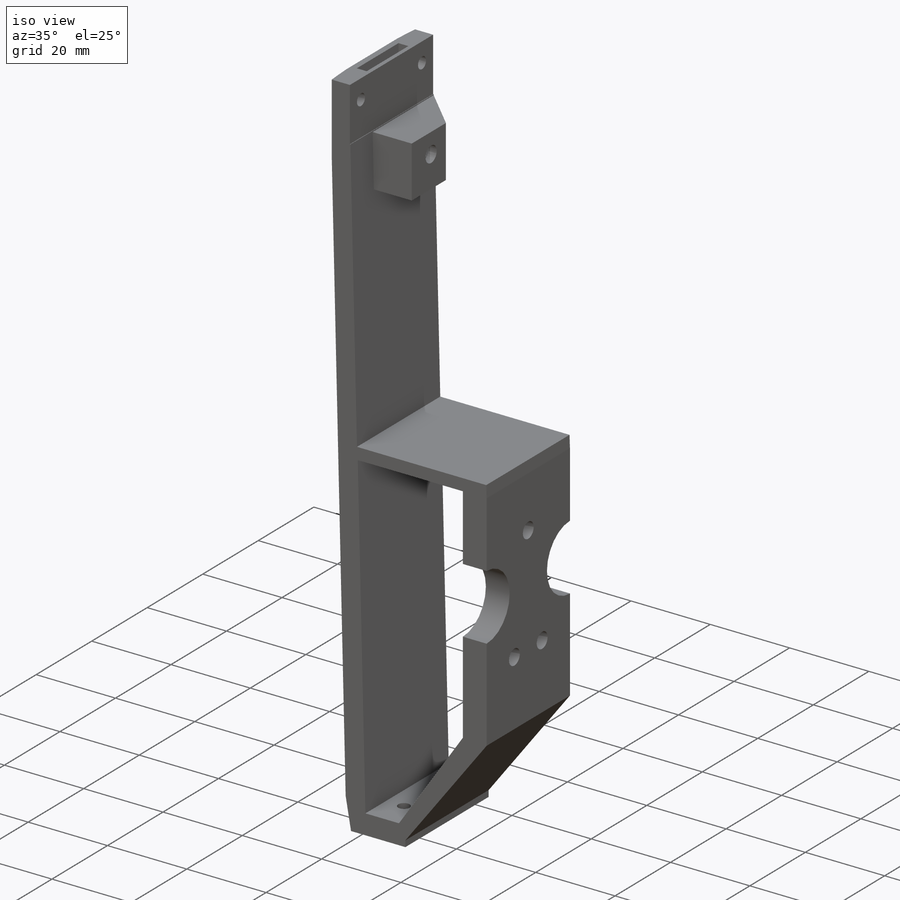
[diagram: iso view]
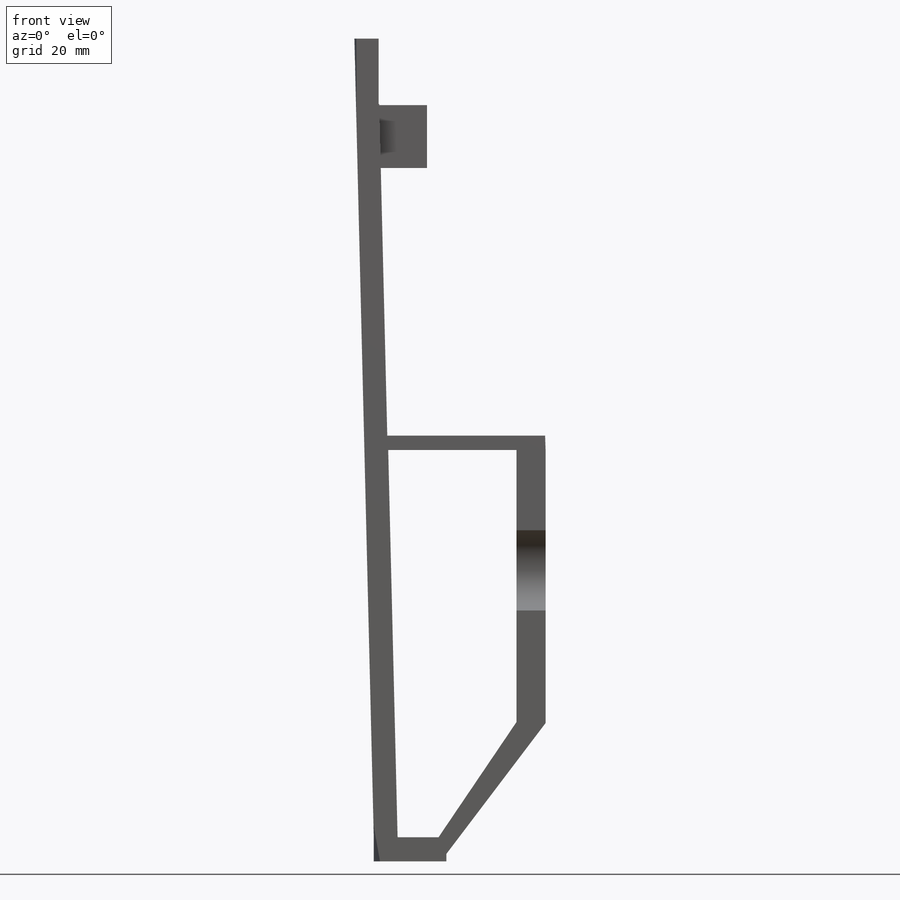
[diagram: front view]
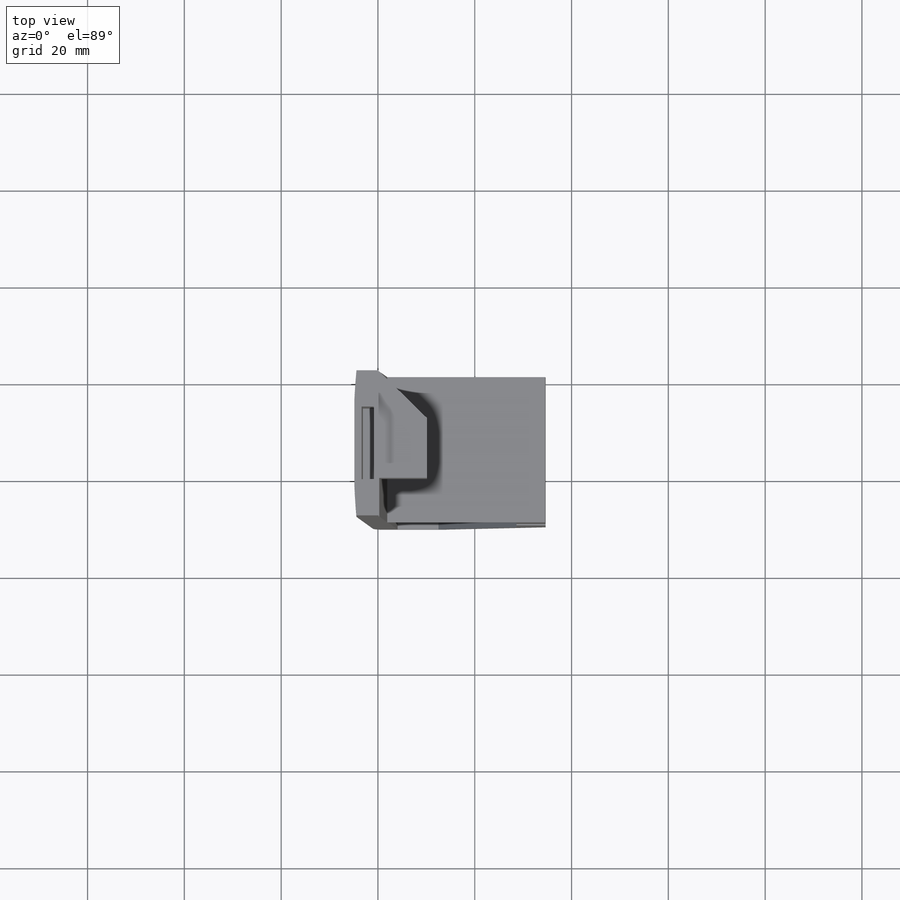
[diagram: top view]
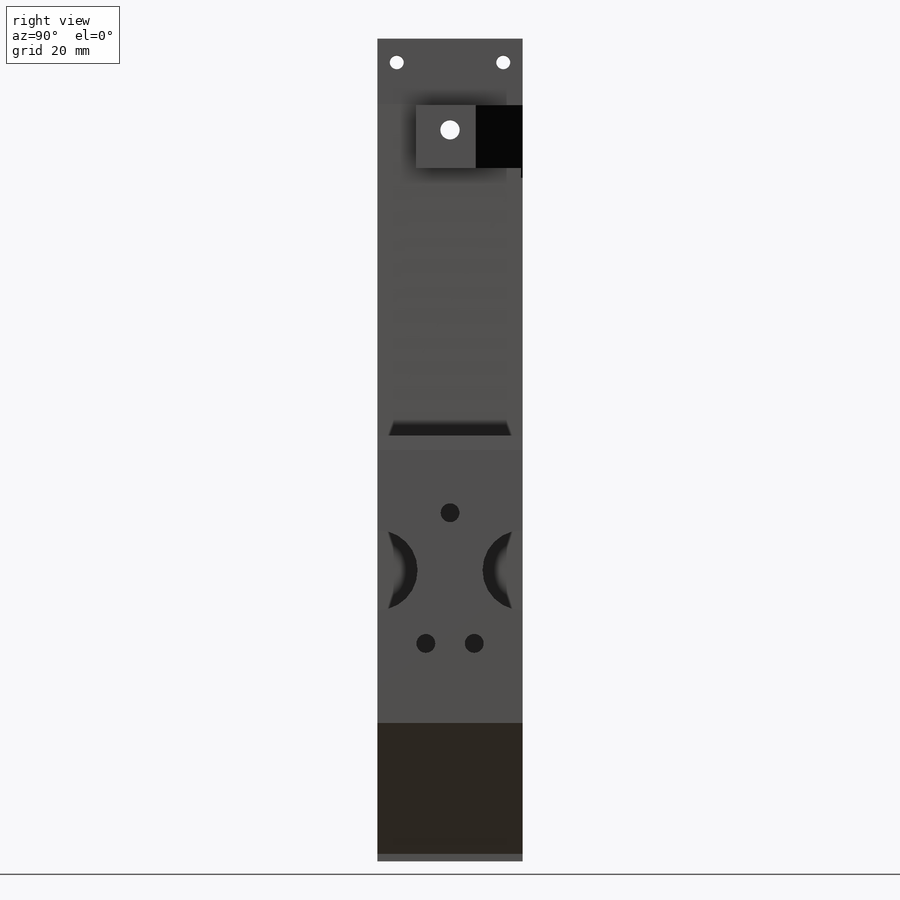
[diagram: right view]
SOLIDWORKS PART (.sldprt)
format: sldprt  version: not decoded by parser v0  size: 386,048 bytes
history: native  units: mm
features: sketch x20, cut_extrude x12, extrude x3, mirror x3, plane x2, material x1, hole x1 (+14 scaffold rows collapsed)
feature tree (56):
  scaffold x14  (default folders/planes/origin — collapsed)
  material  "Material <not specified>"
  sketch  "Sketch1"  dims[D1=6.0mm D2=15.0mm D3=5.0mm D4=35.5mm D5=85.0mm]
  extrude  "Extrude1"  Depth=30mm
  sketch  "Sketch2"  dims[D1=170.0mm D2=4.8mm D3=39.5mm D4=0.2mm]
  extrude  "Extrude2"  Depth=30mm
  sketch  "Sketch4"
  cut_extrude  "Extrude4"  Depth=30mm
  sketch  "Sketch5"  dims[D1=3.9mm D2=10.0mm D3=10.0mm D4=10.0mm D5=~16.410332mm]
  cut_extrude  "Extrude5"  Depth=20mm
  sketch  "Sketch6"  dims[D1=3.9mm D2=13.0mm]
  cut_extrude  "Extrude6"  Depth=20mm
  sketch  "Sketch9"  dims[D1=2.9mm D2=4.0mm D3=15.0mm]
  cut_extrude  "Extrude9"  Depth=20mm
  sketch  "Sketch10"  dims[c1.D1=~26.334686mm c2.D1=50.0deg]
  sketch  "Sketch11"
  sketch  "Sketch14"
  cut_extrude  "Extrude12"  [1 undecoded]
  sketch  "Sketch16"
  plane  "Plane4"
  sketch  "Sketch15"  dims[D1=15.0mm D2=15.0mm]
  cut_extrude  "Extrude15"  Depth=10mm
  sketch  "Sketch17"  dims[c1.D1=5.0mm c1.D2=25.0mm c1.D3=15.0mm c1.D4=10.0mm c1.D5=10.0mm c1.D6=8.0mm c2.D1=10.0mm c2.D2=20.0mm c2.D3=5.0mm c2.D7=15.0mm c3.D1=10.0mm c3.D2=14.5mm c3.D3=15.0mm c3.D4=15.0mm]
  cut_extrude  "Extrude17"  Depth=4mm
  sketch  "Sketch18"  dims[D1=2.5mm]
  cut_extrude  "Extrude18"  Depth=10mm
  sketch  "Sketch19"  dims[D1=22.0mm D2=13.0mm D3=5.5mm]
  extrude  "Extrude19"  Depth=10mm
  sketch  "Sketch20"  dims[D1=8.0mm D2=9.2mm]
  cut_extrude  "Extrude20"  Depth=8.5mm
  sketch  "Sketch21"  dims[D1=4.0mm]
  cut_extrude  "Extrude21"  Depth=9mm
  sketch  "Sketch22"
  cut_extrude  "Extrude22"  Depth=15mm
  plane  "Plane5"  Offset=15mm
  mirror  "Mirror1"
  mirror  "Mirror2"
  hole  "Ø2.9 (2.9) Diameter Hole1"  Diameter=2.9mm Depth=10mm
  sketch  "3DSketch1"  dims[c1.D1=~3.73401mm c1.D3=5.0mm c1.D2=4.0mm c2.D1=5.0mm]
  sketch  "Sketch23"  dims[hole-wizard template sketch: 50 standard entries collapsed; hole parameters above]
  mirror  "Mirror3"
  sketch  "Sketch24"
  cut_extrude  "Extrude23"  Depth=32mm
decode coverage: 29 of 39 modeling features carry decoded parameters
note: ~ marks probable driven/reference dimensions
note: 1 parameter value undecoded
note: suppression state not decoded; provenance and decode notes live in map.json
